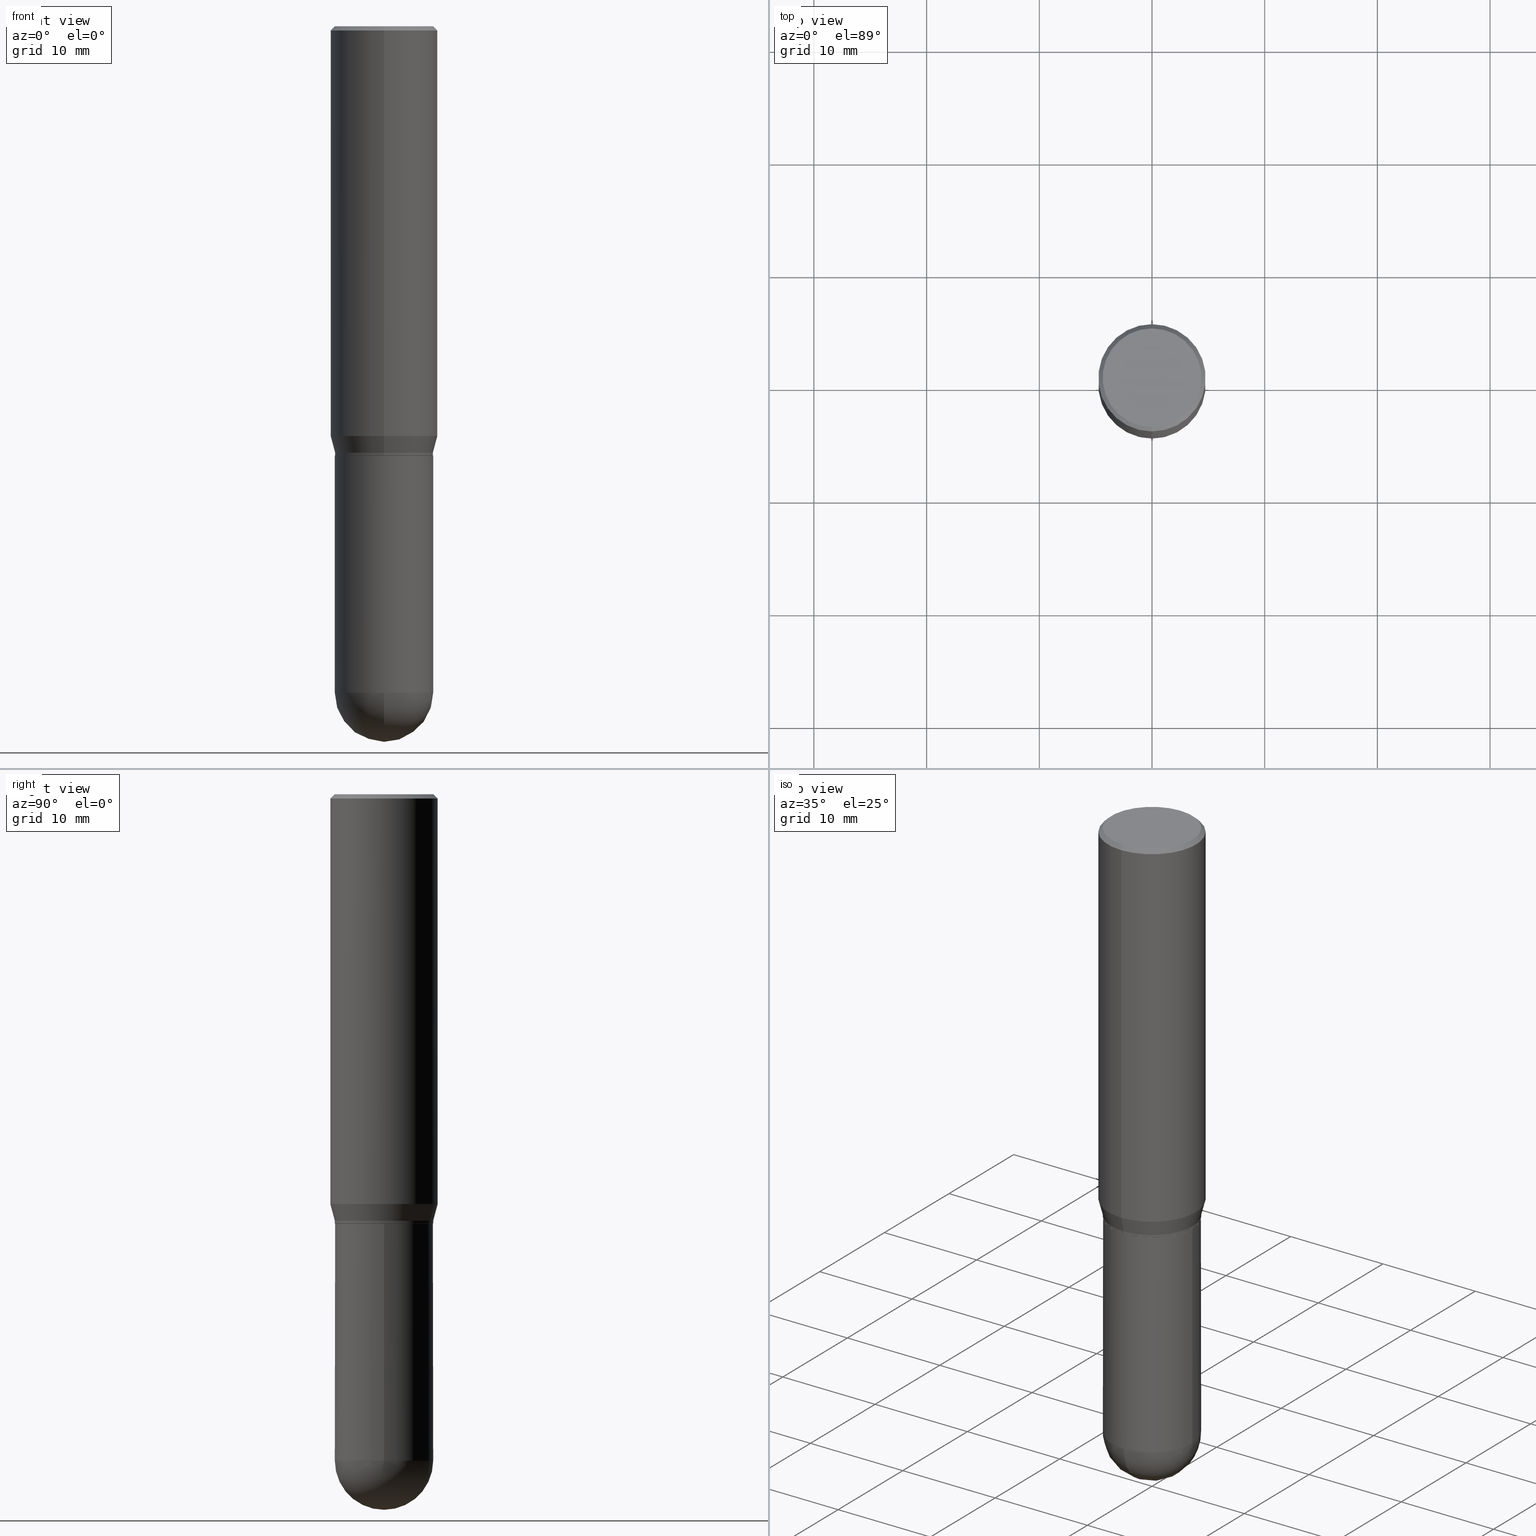
[diagram: canonical four-view strip — front | top / right | iso, engineering-drawing reading convention]
A machine part, canonical four-view strip (front | top / right | iso — engineering-drawing reading convention). The complete STEP part file that produces these views, byte-faithful:
ISO-10303-21;
HEADER;
FILE_DESCRIPTION (( 'STEP AP203' ),
    '1' );
FILE_NAME ('31151.STEP',
    '2024-03-08T15:56:43',
    ( '' ),
    ( '' ),
    'SwSTEP 2.0',
    'SolidWorks 2023',
    '' );
FILE_SCHEMA (( 'CONFIG_CONTROL_DESIGN' ));
ENDSEC;

DATA;
#1 = EDGE_LOOP ( 'NONE', ( #392, #140 ) ) ;
#2 = CARTESIAN_POINT ( 'NONE',  ( 3.667651660176797518E-31, -5.238011857969553431E-17, -0.01500000000000015730 ) ) ;
#3 = ORIENTED_EDGE ( 'NONE', *, *, #133, .T. ) ;
#4 = CARTESIAN_POINT ( 'NONE',  ( -1.200371284294232165E-15, -0.1719000000000051598, -1.499499999999999611 ) ) ;
#5 = CARTESIAN_POINT ( 'NONE',  ( 0.1719000000000000250, -1.200371284294269241E-15, 8.382147877593214480E-30 ) ) ;
#6 = PERSON_AND_ORGANIZATION ( #339, #63 ) ;
#7 = VECTOR ( 'NONE', #157, 39.37007874015748854 ) ;
#8 = AXIS2_PLACEMENT_3D ( 'NONE', #290, #251, #373 ) ;
#9 = DIRECTION ( 'NONE',  ( 4.937700262164548831E-15, 0.7071067811865452413, -0.7071067811865497932 ) ) ;
#10 = VERTEX_POINT ( 'NONE', #289 ) ;
#11 = CARTESIAN_POINT ( 'NONE',  ( 1.217870249092847983E-15, 0.1713999999999947510, -1.500000000000000666 ) ) ;
#12 = CARTESIAN_POINT ( 'NONE',  ( 1.276845296160934931E-15, 0.1718999999999946959, -1.490000000000000879 ) ) ;
#13 = EDGE_LOOP ( 'NONE', ( #98, #278, #461, #259 ) ) ;
#14 = CARTESIAN_POINT ( 'NONE',  ( 1.221422962771647501E-15, 0.1718999999999946959, -1.490000000000000879 ) ) ;
#15 = APPLICATION_PROTOCOL_DEFINITION ( 'international standard', 'config_control_design', 1994, #378 ) ;
#16 = EDGE_CURVE ( 'NONE', #10, #431, #366, .T. ) ;
#17 = AXIS2_PLACEMENT_3D ( 'NONE', #402, #308, #47 ) ;
#18 = CIRCLE ( 'NONE', #371, 0.1718999999999999140 ) ;
#19 = CARTESIAN_POINT ( 'NONE',  ( 1.332267629550222953E-15, 0.1874999999999999445, -0.01500000000000081303 ) ) ;
#20 = SPHERICAL_SURFACE ( 'NONE', #143, 0.1718999999999999417 ) ;
#21 = CARTESIAN_POINT ( 'NONE',  ( 3.847335093553996176E-45, -5.494629454708573138E-31, -1.573487117926806075E-16 ) ) ;
#22 = CYLINDRICAL_SURFACE ( 'NONE', #420, 0.1718999999999998862 ) ;
#23 = ADVANCED_FACE ( 'NONE', ( #131 ), #128, .T. ) ;
#24 = CARTESIAN_POINT ( 'NONE',  ( 0.000000000000000000, 0.000000000000000000, 0.000000000000000000 ) ) ;
#25 = VERTEX_POINT ( 'NONE', #124 ) ;
#26 = AXIS2_PLACEMENT_3D ( 'NONE', #58, #213, #56 ) ;
#27 = DIRECTION ( 'NONE',  ( -2.445468806185136597E-29, 3.491481338843145583E-15, 1.000000000000000000 ) ) ;
#28 = LOCAL_TIME ( 10, 56, 43.00000000000000000, #186 ) ;
#29 = ORIENTED_EDGE ( 'NONE', *, *, #216, .T. ) ;
#30 = DIRECTION ( 'NONE',  ( -2.445101106784506129E-29, 3.492007905312998807E-15, 1.000000000000000000 ) ) ;
#31 = AXIS2_PLACEMENT_3D ( 'NONE', #428, #305, #110 ) ;
#32 = DATE_AND_TIME ( #331, #454 ) ;
#33 = COORDINATED_UNIVERSAL_TIME_OFFSET ( 5, 0, .BEHIND. ) ;
#34 = ADVANCED_FACE ( 'NONE', ( #323 ), #20, .T. ) ;
#35 = EDGE_LOOP ( 'NONE', ( #114, #144, #363, #340 ) ) ;
#36 = ORIENTED_EDGE ( 'NONE', *, *, #404, .F. ) ;
#37 = FACE_OUTER_BOUND ( 'NONE', #387, .T. ) ;
#38 = PERSON_AND_ORGANIZATION_ROLE ( 'classification_officer' ) ;
#39 = CC_DESIGN_DATE_AND_TIME_ASSIGNMENT ( #425, #64, ( #386 ) ) ;
#40 = CIRCLE ( 'NONE', #31, 0.1875000000000000278 ) ;
#41 = LOCAL_TIME ( 10, 56, 43.00000000000000000, #214 ) ;
#42 = ORIENTED_EDGE ( 'NONE', *, *, #43, .F. ) ;
#43 = EDGE_CURVE ( 'NONE', #106, #119, #422, .T. ) ;
#44 = CARTESIAN_POINT ( 'NONE',  ( 0.000000000000000000, 0.000000000000000000, 0.000000000000000000 ) ) ;
#45 = ORIENTED_EDGE ( 'NONE', *, *, #188, .T. ) ;
#46 = ORIENTED_EDGE ( 'NONE', *, *, #446, .F. ) ;
#47 = DIRECTION ( 'NONE',  ( 6.982962677686265922E-15, 1.000000000000000000, -3.494488891895536035E-15 ) ) ;
#48 = CARTESIAN_POINT ( 'NONE',  ( 0.000000000000000000, 0.000000000000000000, 0.000000000000000000 ) ) ;
#49 = CARTESIAN_POINT ( 'NONE',  ( 3.500846880770375597E-29, -4.999787104516626728E-15, -1.431780007401925348 ) ) ;
#50 = AXIS2_PLACEMENT_3D ( 'NONE', #2, #439, #116 ) ;
#51 = VECTOR ( 'NONE', #96, 39.37007874015748143 ) ;
#52 = CARTESIAN_POINT ( 'NONE',  ( 3.666429109623367702E-29, -5.236265854016842005E-15, -1.499500000000000277 ) ) ;
#53 = ORIENTED_EDGE ( 'NONE', *, *, #43, .T. ) ;
#54 = DIRECTION ( 'NONE',  ( -6.982962677686265922E-15, -1.000000000000000000, 3.178415350394723252E-15 ) ) ;
#55 = CARTESIAN_POINT ( 'NONE',  ( 3.667651660176758913E-29, -5.238011857969497816E-15, -1.500000000000000222 ) ) ;
#56 = DIRECTION ( 'NONE',  ( -6.982962677686265922E-15, -1.000000000000000000, 3.178415350394723646E-15 ) ) ;
#57 = DIRECTION ( 'NONE',  ( -2.445468806185136597E-29, 3.491481338843145583E-15, 1.000000000000000000 ) ) ;
#58 = CARTESIAN_POINT ( 'NONE',  ( 3.643200649108914518E-29, -5.203091778916368972E-15, -1.490000000000000213 ) ) ;
#59 = AXIS2_PLACEMENT_3D ( 'NONE', #171, #502, #132 ) ;
#60 = CC_DESIGN_PERSON_AND_ORGANIZATION_ASSIGNMENT ( #390, #38, ( #386 ) ) ;
#61 = ORIENTED_EDGE ( 'NONE', *, *, #311, .F. ) ;
#62 = CIRCLE ( 'NONE', #336, 0.1718999999999999417 ) ;
#63 = ORGANIZATION ( 'UNSPECIFIED', 'UNSPECIFIED', '' ) ;
#64 = DATE_TIME_ROLE ( 'classification_date' ) ;
#65 = CALENDAR_DATE ( 2024, 8, 3 ) ;
#66 = DATE_AND_TIME ( #65, #149 ) ;
#67 = CARTESIAN_POINT ( 'NONE',  ( -1.200371284294268255E-15, -0.1718999999999998862, 6.002761589233040291E-16 ) ) ;
#68 = VERTEX_POINT ( 'NONE', #490 ) ;
#69 = EDGE_CURVE ( 'NONE', #106, #25, #62, .T. ) ;
#70 = AXIS2_PLACEMENT_3D ( 'NONE', #123, #30, #418 ) ;
#71 = CIRCLE ( 'NONE', #395, 0.1719000000000000250 ) ;
#72 = ORIENTED_EDGE ( 'NONE', *, *, #455, .T. ) ;
#73 = DIRECTION ( 'NONE',  ( 0.000000000000000000, 0.000000000000000000, 1.000000000000000000 ) ) ;
#74 = CARTESIAN_POINT ( 'NONE',  ( 0.000000000000000000, 0.000000000000000000, 0.000000000000000000 ) ) ;
#75 = SPHERICAL_SURFACE ( 'NONE', #190, 0.1718999999999999417 ) ;
#76 = DIRECTION ( 'NONE',  ( 1.000000000000000000, -6.982962677686265922E-15, 4.876176775795935793E-29 ) ) ;
#77 = CIRCLE ( 'NONE', #8, 0.1718999999999998862 ) ;
#78 = AXIS2_PLACEMENT_3D ( 'NONE', #74, #73, #229 ) ;
#79 = VERTEX_POINT ( 'NONE', #280 ) ;
#80 = DIRECTION ( 'NONE',  ( -2.445101106784506129E-29, 3.492007905312998807E-15, 1.000000000000000000 ) ) ;
#81 = DIRECTION ( 'NONE',  ( -2.445468806185136877E-29, 3.491481338843145188E-15, 1.000000000000000000 ) ) ;
#82 = ORIENTED_EDGE ( 'NONE', *, *, #409, .T. ) ;
#83 = CARTESIAN_POINT ( 'NONE',  ( 5.678595619168622984E-29, -8.149569383438070914E-15, -2.328100000000000058 ) ) ;
#84 = EDGE_LOOP ( 'NONE', ( #181, #383, #438, #199 ) ) ;
#85 = FACE_OUTER_BOUND ( 'NONE', #335, .T. ) ;
#86 = CONICAL_SURFACE ( 'NONE', #17, 0.1875000000000000278, 0.7853981633974485010 ) ;
#87 = CARTESIAN_POINT ( 'NONE',  ( 0.1719000000000000250, -7.883241140906993293E-15, -2.328100000000000058 ) ) ;
#88 = DIRECTION ( 'NONE',  ( -4.937700262164715281E-15, -0.7071067811865691111, 0.7071067811865257013 ) ) ;
#89 = DIRECTION ( 'NONE',  ( -6.982962677686265922E-15, -1.000000000000000000, 3.492007905312998413E-15 ) ) ;
#90 = LINE ( 'NONE', #324, #51 ) ;
#91 = CARTESIAN_POINT ( 'NONE',  ( -1.200371284294231968E-15, -0.1719000000000050765, -1.489999999999999769 ) ) ;
#92 = EDGE_CURVE ( 'NONE', #431, #105, #222, .T. ) ;
#93 = FACE_OUTER_BOUND ( 'NONE', #193, .T. ) ;
#94 = CIRCLE ( 'NONE', #136, 0.1713999999999999690 ) ;
#95 = EDGE_CURVE ( 'NONE', #119, #99, #117, .T. ) ;
#96 = DIRECTION ( 'NONE',  ( -2.445101106784506129E-29, 3.492007905312998807E-15, 1.000000000000000000 ) ) ;
#97 = AXIS2_PLACEMENT_3D ( 'NONE', #364, #326, #494 ) ;
#98 = ORIENTED_EDGE ( 'NONE', *, *, #122, .F. ) ;
#99 = VERTEX_POINT ( 'NONE', #87 ) ;
#100 = APPROVAL_ROLE ( '' ) ;
#101 = ADVANCED_FACE ( 'NONE', ( #416 ), #22, .T. ) ;
#102 = DATE_TIME_ROLE ( 'creation_date' ) ;
#103 = AXIS2_PLACEMENT_3D ( 'NONE', #155, #189, #276 ) ;
#104 = CC_DESIGN_SECURITY_CLASSIFICATION ( #386, ( #212 ) ) ;
#105 = VERTEX_POINT ( 'NONE', #246 ) ;
#106 = VERTEX_POINT ( 'NONE', #413 ) ;
#107 = DIRECTION ( 'NONE',  ( 1.000000000000000000, -6.982962677686268288E-15, 0.000000000000000000 ) ) ;
#108 = VECTOR ( 'NONE', #501, 39.37007874015748143 ) ;
#109 = AXIS2_PLACEMENT_3D ( 'NONE', #498, #244, #208 ) ;
#110 = DIRECTION ( 'NONE',  ( -6.982962677686265922E-15, -1.000000000000000000, 2.913971193241880372E-15 ) ) ;
#111 = VERTEX_POINT ( 'NONE', #211 ) ;
#112 = CARTESIAN_POINT ( 'NONE',  ( 3.667651660176797518E-31, -5.238011857969553431E-17, -0.01500000000000015730 ) ) ;
#113 = EDGE_CURVE ( 'NONE', #243, #68, #94, .T. ) ;
#114 = ORIENTED_EDGE ( 'NONE', *, *, #342, .T. ) ;
#115 = DIRECTION ( 'NONE',  ( -1.000000000000000000, 6.982962677686265922E-15, -4.883557194083112340E-29 ) ) ;
#116 = DIRECTION ( 'NONE',  ( -6.982962677686265922E-15, -1.000000000000000000, 3.494488891895536035E-15 ) ) ;
#117 = CIRCLE ( 'NONE', #313, 0.1719000000000000250 ) ;
#118 = VECTOR ( 'NONE', #88, 39.37007874015748854 ) ;
#119 = VERTEX_POINT ( 'NONE', #375 ) ;
#120 = DIRECTION ( 'NONE',  ( -6.982962677686266711E-15, -1.000000000000000000, 3.187687273820611169E-15 ) ) ;
#121 = DIRECTION ( 'NONE',  ( 6.982962677686266711E-15, 1.000000000000000000, 0.000000000000000000 ) ) ;
#122 = EDGE_CURVE ( 'NONE', #442, #79, #153, .T. ) ;
#123 = CARTESIAN_POINT ( 'NONE',  ( 3.667651660176758913E-29, -5.238011857969497816E-15, -1.500000000000000222 ) ) ;
#124 = CARTESIAN_POINT ( 'NONE',  ( 1.200371284294326039E-15, 0.1718999999999918094, -2.328100000000000946 ) ) ;
#125 = DIRECTION ( 'NONE',  ( -6.982962677686266711E-15, -1.000000000000000000, 3.492007905312998413E-15 ) ) ;
#126 = EDGE_CURVE ( 'NONE', #111, #182, #435, .T. ) ;
#127 = MANIFOLD_SOLID_BREP ( 'Body-Move/Copy2[1]', #370 ) ;
#128 = CYLINDRICAL_SURFACE ( 'NONE', #360, 0.1719000000000000250 ) ;
#129 = CC_DESIGN_APPROVAL ( #394, ( #437 ) ) ;
#130 = CARTESIAN_POINT ( 'NONE',  ( 3.667651660176758913E-29, -5.238011857969497816E-15, -1.500000000000000222 ) ) ;
#131 = FACE_OUTER_BOUND ( 'NONE', #306, .T. ) ;
#132 = DIRECTION ( 'NONE',  ( 1.000000000000000000, -6.982962677686268288E-15, 0.000000000000000000 ) ) ;
#133 = EDGE_CURVE ( 'NONE', #105, #431, #40, .T. ) ;
#134 = CARTESIAN_POINT ( 'NONE',  ( 0.000000000000000000, 0.000000000000000000, 0.000000000000000000 ) ) ;
#135 = PLANE ( 'NONE',  #298 ) ;
#136 = AXIS2_PLACEMENT_3D ( 'NONE', #55, #372, #209 ) ;
#137 = LINE ( 'NONE', #217, #322 ) ;
#138 = DESIGN_CONTEXT ( 'detailed design', #485, 'design' ) ;
#139 = ADVANCED_FACE ( 'NONE', ( #228 ), #264, .T. ) ;
#140 = ORIENTED_EDGE ( 'NONE', *, *, #113, .F. ) ;
#141 = PERSON_AND_ORGANIZATION ( #339, #63 ) ;
#142 = ORIENTED_EDGE ( 'NONE', *, *, #449, .F. ) ;
#143 = AXIS2_PLACEMENT_3D ( 'NONE', #314, #316, #207 ) ;
#144 = ORIENTED_EDGE ( 'NONE', *, *, #253, .T. ) ;
#145 = PERSON_AND_ORGANIZATION ( #339, #63 ) ;
#146 = ORIENTED_EDGE ( 'NONE', *, *, #126, .F. ) ;
#147 = EDGE_CURVE ( 'NONE', #350, #325, #389, .T. ) ;
#148 = DIRECTION ( 'NONE',  ( -2.445468806185136597E-29, 3.491481338843145583E-15, 1.000000000000000000 ) ) ;
#149 = LOCAL_TIME ( 10, 56, 43.00000000000000000, #33 ) ;
#150 = FACE_OUTER_BOUND ( 'NONE', #13, .T. ) ;
#151 = ORIENTED_EDGE ( 'NONE', *, *, #95, .F. ) ;
#152 = DIRECTION ( 'NONE',  ( -2.445468806185136597E-29, 3.491481338843145583E-15, 1.000000000000000000 ) ) ;
#153 = LINE ( 'NONE', #441, #385 ) ;
#154 = EDGE_LOOP ( 'NONE', ( #179, #474, #169, #445, #338 ) ) ;
#155 = CARTESIAN_POINT ( 'NONE',  ( 3.643200649108914518E-29, -5.203091778916368972E-15, -1.490000000000000213 ) ) ;
#156 = ADVANCED_BREP_SHAPE_REPRESENTATION ( '31151', ( #127, #468, #78 ), #204 ) ;
#157 = DIRECTION ( 'NONE',  ( 1.839019923739597949E-15, 0.2588190451025246253, 0.9659258262890670910 ) ) ;
#158 = MECHANICAL_CONTEXT ( 'NONE', #378, 'mechanical' ) ;
#159 = ADVANCED_FACE ( 'NONE', ( #344 ), #75, .T. ) ;
#160 = ORIENTED_EDGE ( 'NONE', *, *, #216, .F. ) ;
#161 = CARTESIAN_POINT ( 'NONE',  ( 3.667651660176758913E-29, -5.238011857969497816E-15, -1.500000000000000222 ) ) ;
#162 = ORIENTED_EDGE ( 'NONE', *, *, #95, .T. ) ;
#163 = EDGE_CURVE ( 'NONE', #465, #182, #497, .T. ) ;
#164 = LINE ( 'NONE', #407, #504 ) ;
#165 = EDGE_LOOP ( 'NONE', ( #355, #82, #487, #172 ) ) ;
#166 = DIRECTION ( 'NONE',  ( -2.445101106784506129E-29, 3.492007905312998807E-15, 1.000000000000000000 ) ) ;
#167 = ADVANCED_FACE ( 'NONE', ( #480 ), #86, .T. ) ;
#168 = APPROVAL_DATE_TIME ( #495, #394 ) ;
#169 = ORIENTED_EDGE ( 'NONE', *, *, #163, .F. ) ;
#170 = AXIS2_PLACEMENT_3D ( 'NONE', #397, #433, #120 ) ;
#171 = CARTESIAN_POINT ( 'NONE',  ( 3.668203209277704895E-29, -5.237222008264718177E-15, -1.500000000000000222 ) ) ;
#172 = ORIENTED_EDGE ( 'NONE', *, *, #455, .F. ) ;
#173 = PLANE ( 'NONE',  #408 ) ;
#174 = APPROVAL_ROLE ( '' ) ;
#175 = SHAPE_DEFINITION_REPRESENTATION ( #436, #156 ) ;
#176 = AXIS2_PLACEMENT_3D ( 'NONE', #49, #496, #249 ) ;
#177 = VECTOR ( 'NONE', #384, 39.37007874015748143 ) ;
#178 = AXIS2_PLACEMENT_3D ( 'NONE', #24, #166, #319 ) ;
#179 = ORIENTED_EDGE ( 'NONE', *, *, #446, .T. ) ;
#180 = EDGE_CURVE ( 'NONE', #325, #79, #430, .T. ) ;
#181 = ORIENTED_EDGE ( 'NONE', *, *, #253, .F. ) ;
#182 = VERTEX_POINT ( 'NONE', #232 ) ;
#183 = CIRCLE ( 'NONE', #97, 0.1875000000000000278 ) ;
#184 = EDGE_LOOP ( 'NONE', ( #312, #238, #72, #61 ) ) ;
#185 = UNCERTAINTY_MEASURE_WITH_UNIT (LENGTH_MEASURE( 1.000000000000000082E-05 ), #239, 'distance_accuracy_value', 'NONE');
#186 = COORDINATED_UNIVERSAL_TIME_OFFSET ( 5, 0, .BEHIND. ) ;
#187 = ORIENTED_EDGE ( 'NONE', *, *, #379, .F. ) ;
#188 = EDGE_CURVE ( 'NONE', #442, #350, #218, .T. ) ;
#189 = DIRECTION ( 'NONE',  ( -2.445101106784506129E-29, 3.492007905312998807E-15, 1.000000000000000000 ) ) ;
#190 = AXIS2_PLACEMENT_3D ( 'NONE', #83, #115, #341 ) ;
#191 = CONICAL_SURFACE ( 'NONE', #170, 0.1713999999999999690, 0.7853981633974824739 ) ;
#192 = LENGTH_MEASURE_WITH_UNIT ( LENGTH_MEASURE( 0.02539999999999999897 ), #201 );
#193 = EDGE_LOOP ( 'NONE', ( #36, #3, #302, #426 ) ) ;
#194 = DIRECTION ( 'NONE',  ( 6.982962677686265922E-15, 1.000000000000000000, -3.492007905312998807E-15 ) ) ;
#195 = CYLINDRICAL_SURFACE ( 'NONE', #478, 0.1718999999999998862 ) ;
#196 = ORIENTED_EDGE ( 'NONE', *, *, #163, .T. ) ;
#197 = CARTESIAN_POINT ( 'NONE',  ( 1.309305502066175600E-15, 0.1874999999999999445, -0.01500000000000081303 ) ) ;
#198 = CARTESIAN_POINT ( 'NONE',  ( 3.666429109623367702E-29, -5.236265854016842005E-15, -1.499500000000000277 ) ) ;
#199 = ORIENTED_EDGE ( 'NONE', *, *, #133, .F. ) ;
#200 = FACE_OUTER_BOUND ( 'NONE', #300, .T. ) ;
#201 =( LENGTH_UNIT ( ) NAMED_UNIT ( * ) SI_UNIT ( $, .METRE. ) );
#202 = AXIS2_PLACEMENT_3D ( 'NONE', #358, #240, #410 ) ;
#203 = ADVANCED_FACE ( 'NONE', ( #37 ), #444, .F. ) ;
#204 =( GEOMETRIC_REPRESENTATION_CONTEXT ( 3 ) GLOBAL_UNCERTAINTY_ASSIGNED_CONTEXT ( ( #185 ) ) GLOBAL_UNIT_ASSIGNED_CONTEXT ( ( #239, #349, #226 ) ) REPRESENTATION_CONTEXT ( 'NONE', 'WORKASPACE' ) );
#205 = ORIENTED_EDGE ( 'NONE', *, *, #188, .F. ) ;
#206 = CARTESIAN_POINT ( 'NONE',  ( 1.221422962771647501E-15, 0.1718999999999946682, -1.499500000000000721 ) ) ;
#207 = DIRECTION ( 'NONE',  ( 6.982962677686265922E-15, 1.000000000000000000, -3.178415350394722463E-15 ) ) ;
#208 = DIRECTION ( 'NONE',  ( -6.982962677686265922E-15, -1.000000000000000000, 3.178415350394723646E-15 ) ) ;
#209 = DIRECTION ( 'NONE',  ( -6.982962677686266711E-15, -1.000000000000000000, 3.187687273820611169E-15 ) ) ;
#210 = CARTESIAN_POINT ( 'NONE',  ( -1.234889639598875176E-15, -0.1725000000000000144, 4.450226518738116769E-16 ) ) ;
#211 = CARTESIAN_POINT ( 'NONE',  ( -0.1719000000000000250, -5.461446893841112247E-15, -2.328100000000000058 ) ) ;
#212 = PRODUCT_DEFINITION_FORMATION_WITH_SPECIFIED_SOURCE ( 'ANY', '', #309, .NOT_KNOWN. ) ;
#213 = DIRECTION ( 'NONE',  ( -2.445101106784506129E-29, 3.492007905312998807E-15, 1.000000000000000000 ) ) ;
#214 = COORDINATED_UNIVERSAL_TIME_OFFSET ( 5, 0, .BEHIND. ) ;
#215 = PERSON_AND_ORGANIZATION ( #339, #63 ) ;
#216 = EDGE_CURVE ( 'NONE', #243, #263, #351, .T. ) ;
#217 = CARTESIAN_POINT ( 'NONE',  ( -1.309305502066175008E-15, -0.1875000000000000278, 6.547514822461873257E-16 ) ) ;
#218 = CIRCLE ( 'NONE', #256, 0.1725000000000000144 ) ;
#219 = LOCAL_TIME ( 10, 56, 43.00000000000000000, #427 ) ;
#220 = ORIENTED_EDGE ( 'NONE', *, *, #473, .F. ) ;
#221 = ADVANCED_FACE ( 'NONE', ( #303 ), #486, .T. ) ;
#222 = CIRCLE ( 'NONE', #176, 0.1875000000000000278 ) ;
#223 = CC_DESIGN_APPROVAL ( #245, ( #386 ) ) ;
#224 = ORIENTED_EDGE ( 'NONE', *, *, #414, .F. ) ;
#225 = DIRECTION ( 'NONE',  ( -6.982962677686265922E-15, -1.000000000000000000, 3.492007905312998413E-15 ) ) ;
#226 =( NAMED_UNIT ( * ) SI_UNIT ( $, .STERADIAN. ) SOLID_ANGLE_UNIT ( ) );
#227 = SECURITY_CLASSIFICATION_LEVEL ( 'unclassified' ) ;
#228 = FACE_OUTER_BOUND ( 'NONE', #84, .T. ) ;
#229 = DIRECTION ( 'NONE',  ( 1.000000000000000000, 0.000000000000000000, 0.000000000000000000 ) ) ;
#230 = APPROVAL ( #334, 'UNSPECIFIED' ) ;
#231 = VERTEX_POINT ( 'NONE', #4 ) ;
#232 = CARTESIAN_POINT ( 'NONE',  ( -0.1718999999999999695, -5.461446893841111458E-15, -1.500000000000000222 ) ) ;
#233 = CIRCLE ( 'NONE', #26, 0.1718999999999998862 ) ;
#234 = AXIS2_PLACEMENT_3D ( 'NONE', #112, #353, #277 ) ;
#235 = DIRECTION ( 'NONE',  ( -2.445101106784506129E-29, 3.492007905312998807E-15, 1.000000000000000000 ) ) ;
#236 = ORIENTED_EDGE ( 'NONE', *, *, #122, .T. ) ;
#237 = CARTESIAN_POINT ( 'NONE',  ( 5.693295927679617284E-29, -8.128517704960729139E-15, -2.328100000000000058 ) ) ;
#238 = ORIENTED_EDGE ( 'NONE', *, *, #374, .T. ) ;
#239 =( CONVERSION_BASED_UNIT ( 'INCH', #192 ) LENGTH_UNIT ( ) NAMED_UNIT ( #252 ) );
#240 = DIRECTION ( 'NONE',  ( -1.000000000000000000, 7.105427357601001070E-15, -4.926315508542082329E-29 ) ) ;
#241 = DIRECTION ( 'NONE',  ( -2.445101106784506129E-29, 3.492007905312998807E-15, 1.000000000000000000 ) ) ;
#242 = EDGE_CURVE ( 'NONE', #99, #25, #291, .T. ) ;
#243 = VERTEX_POINT ( 'NONE', #399 ) ;
#244 = DIRECTION ( 'NONE',  ( -2.445101106784506129E-29, 3.492007905312998807E-15, 1.000000000000000000 ) ) ;
#245 = APPROVAL ( #376, 'UNSPECIFIED' ) ;
#246 = CARTESIAN_POINT ( 'NONE',  ( 1.332267629550222558E-15, 0.1874999999999950318, -1.431780007401926014 ) ) ;
#247 = CARTESIAN_POINT ( 'NONE',  ( -1.309305502066140101E-15, -0.1875000000000049960, -1.431780007401924903 ) ) ;
#248 = PERSON_AND_ORGANIZATION ( #339, #63 ) ;
#249 = DIRECTION ( 'NONE',  ( -6.982962677686265922E-15, -1.000000000000000000, 2.913971193241880372E-15 ) ) ;
#250 = DIRECTION ( 'NONE',  ( 1.000000000000000000, -6.982962677686271444E-15, 0.000000000000000000 ) ) ;
#251 = DIRECTION ( 'NONE',  ( -2.445101106784506129E-29, 3.492007905312998807E-15, 1.000000000000000000 ) ) ;
#252 = DIMENSIONAL_EXPONENTS ( 1.000000000000000000, 0.000000000000000000, 0.000000000000000000, 0.000000000000000000, 0.000000000000000000, 0.000000000000000000, 0.000000000000000000 ) ;
#253 = EDGE_CURVE ( 'NONE', #512, #105, #356, .T. ) ;
#254 = ORIENTED_EDGE ( 'NONE', *, *, #296, .T. ) ;
#255 = APPROVAL_DATE_TIME ( #32, #230 ) ;
#256 = AXIS2_PLACEMENT_3D ( 'NONE', #483, #476, #269 ) ;
#257 = AXIS2_PLACEMENT_3D ( 'NONE', #130, #285, #457 ) ;
#258 = PRODUCT_RELATED_PRODUCT_CATEGORY ( 'detail', '', ( #309 ) ) ;
#259 = ORIENTED_EDGE ( 'NONE', *, *, #180, .T. ) ;
#260 = DIRECTION ( 'NONE',  ( -2.445468806185136877E-29, 3.491481338843145188E-15, 1.000000000000000000 ) ) ;
#261 = CALENDAR_DATE ( 2024, 8, 3 ) ;
#262 = CARTESIAN_POINT ( 'NONE',  ( -0.1719000000000000250, 1.221422962771612397E-15, -8.455649420148184581E-30 ) ) ;
#263 = VERTEX_POINT ( 'NONE', #206 ) ;
#264 = CONICAL_SURFACE ( 'NONE', #103, 0.1718999999999998862, 0.2617993877991499629 ) ;
#265 = CARTESIAN_POINT ( 'NONE',  ( 3.668203209277704895E-29, -5.237222008264718177E-15, -1.500000000000000222 ) ) ;
#266 = CIRCLE ( 'NONE', #59, 0.1718999999999999695 ) ;
#267 = ADVANCED_FACE ( 'NONE', ( #200 ), #393, .T. ) ;
#268 = ORIENTED_EDGE ( 'NONE', *, *, #69, .T. ) ;
#269 = DIRECTION ( 'NONE',  ( -6.982962677686266711E-15, -1.000000000000000000, 3.492007905312998413E-15 ) ) ;
#270 = LINE ( 'NONE', #5, #470 ) ;
#271 = ORIENTED_EDGE ( 'NONE', *, *, #471, .T. ) ;
#272 = CARTESIAN_POINT ( 'NONE',  ( 0.000000000000000000, 0.000000000000000000, 0.000000000000000000 ) ) ;
#273 = AXIS2_PLACEMENT_3D ( 'NONE', #265, #152, #107 ) ;
#274 = APPROVAL_PERSON_ORGANIZATION ( #215, #245, #100 ) ;
#275 = ORIENTED_EDGE ( 'NONE', *, *, #352, .T. ) ;
#276 = DIRECTION ( 'NONE',  ( -6.982962677686265922E-15, -1.000000000000000000, 3.178415350394723646E-15 ) ) ;
#277 = DIRECTION ( 'NONE',  ( 6.982962677686265922E-15, 1.000000000000000000, -3.494488891895536035E-15 ) ) ;
#278 = ORIENTED_EDGE ( 'NONE', *, *, #391, .F. ) ;
#279 = DIRECTION ( 'NONE',  ( 1.000000000000000000, -6.982962677686271444E-15, 0.000000000000000000 ) ) ;
#280 = CARTESIAN_POINT ( 'NONE',  ( -1.309305502066174614E-15, -0.1875000000000000833, -0.01499999999999950331 ) ) ;
#281 = CARTESIAN_POINT ( 'NONE',  ( -1.196879802955389158E-15, -0.1714000000000052149, -1.499999999999999556 ) ) ;
#282 = PERSON_AND_ORGANIZATION_ROLE ( 'design_owner' ) ;
#283 = CIRCLE ( 'NONE', #361, 0.1718999999999999140 ) ;
#284 = CARTESIAN_POINT ( 'NONE',  ( 5.693295927679617284E-29, -8.128517704960729139E-15, -2.328100000000000058 ) ) ;
#285 = DIRECTION ( 'NONE',  ( -2.445101106784506129E-29, 3.492007905312998807E-15, 1.000000000000000000 ) ) ;
#286 = CARTESIAN_POINT ( 'NONE',  ( 5.678595619168622984E-29, -8.149569383438070914E-15, -2.328100000000000058 ) ) ;
#287 = DIRECTION ( 'NONE',  ( -2.445468806185136597E-29, 3.491481338843145583E-15, 1.000000000000000000 ) ) ;
#288 = PERSON_AND_ORGANIZATION ( #339, #63 ) ;
#289 = CARTESIAN_POINT ( 'NONE',  ( -1.200371284294231968E-15, -0.1719000000000050765, -1.489999999999999769 ) ) ;
#290 = CARTESIAN_POINT ( 'NONE',  ( 3.643200649108914518E-29, -5.203091778916368972E-15, -1.490000000000000213 ) ) ;
#291 = CIRCLE ( 'NONE', #328, 0.1719000000000000250 ) ;
#292 = CIRCLE ( 'NONE', #257, 0.1713999999999999690 ) ;
#293 = CC_DESIGN_DATE_AND_TIME_ASSIGNMENT ( #66, #102, ( #437 ) ) ;
#294 = CALENDAR_DATE ( 2024, 8, 3 ) ;
#295 = APPROVAL_DATE_TIME ( #301, #245 ) ;
#296 = EDGE_CURVE ( 'NONE', #111, #119, #377, .T. ) ;
#297 = PERSON_AND_ORGANIZATION_ROLE ( 'creator' ) ;
#298 = AXIS2_PLACEMENT_3D ( 'NONE', #161, #315, #317 ) ;
#299 = ORIENTED_EDGE ( 'NONE', *, *, #352, .F. ) ;
#300 = EDGE_LOOP ( 'NONE', ( #382, #29, #220, #224 ) ) ;
#301 = DATE_AND_TIME ( #261, #219 ) ;
#302 = ORIENTED_EDGE ( 'NONE', *, *, #449, .T. ) ;
#303 = FACE_OUTER_BOUND ( 'NONE', #327, .T. ) ;
#304 = APPROVAL_ROLE ( '' ) ;
#305 = DIRECTION ( 'NONE',  ( -2.445101106784506129E-29, 3.492007905312998807E-15, 1.000000000000000000 ) ) ;
#306 = EDGE_LOOP ( 'NONE', ( #146, #254, #162, #271, #299 ) ) ;
#307 = DIRECTION ( 'NONE',  ( 1.000000000000000000, -6.982962677686271444E-15, 0.000000000000000000 ) ) ;
#308 = DIRECTION ( 'NONE',  ( 2.445101106784506129E-29, -3.492007905312998807E-15, -1.000000000000000000 ) ) ;
#309 = PRODUCT ( '31151', '31151', '', ( #158 ) ) ;
#310 = DIRECTION ( 'NONE',  ( 5.024295867788231995E-15, 0.7071067811865739960, 0.7071067811865208164 ) ) ;
#311 = EDGE_CURVE ( 'NONE', #512, #10, #233, .T. ) ;
#312 = ORIENTED_EDGE ( 'NONE', *, *, #409, .F. ) ;
#313 = AXIS2_PLACEMENT_3D ( 'NONE', #284, #57, #451 ) ;
#314 = CARTESIAN_POINT ( 'NONE',  ( 5.678595619168622984E-29, -8.149569383438070914E-15, -2.328100000000000058 ) ) ;
#315 = DIRECTION ( 'NONE',  ( -2.445101106784505568E-29, 3.492007905312998807E-15, 1.000000000000000000 ) ) ;
#316 = DIRECTION ( 'NONE',  ( -1.000000000000000000, 6.982962677686265922E-15, -4.883557194083112340E-29 ) ) ;
#317 = DIRECTION ( 'NONE',  ( -6.982962677686265922E-15, -1.000000000000000000, 3.492007905312998807E-15 ) ) ;
#318 = CARTESIAN_POINT ( 'NONE',  ( 0.000000000000000000, 0.000000000000000000, 0.000000000000000000 ) ) ;
#319 = DIRECTION ( 'NONE',  ( -6.982962677686265922E-15, -1.000000000000000000, 3.492007905312998413E-15 ) ) ;
#320 = CC_DESIGN_PERSON_AND_ORGANIZATION_ASSIGNMENT ( #288, #282, ( #309 ) ) ;
#321 = VECTOR ( 'NONE', #310, 39.37007874015748854 ) ;
#322 = VECTOR ( 'NONE', #506, 39.37007874015748143 ) ;
#323 = FACE_OUTER_BOUND ( 'NONE', #508, .T. ) ;
#324 = CARTESIAN_POINT ( 'NONE',  ( 1.221422962771611214E-15, 0.1718999999999998862, -6.002761589233040291E-16 ) ) ;
#325 = VERTEX_POINT ( 'NONE', #19 ) ;
#326 = DIRECTION ( 'NONE',  ( -2.445101106784506129E-29, 3.492007905312998807E-15, 1.000000000000000000 ) ) ;
#327 = EDGE_LOOP ( 'NONE', ( #346, #343, #187, #142 ) ) ;
#328 = AXIS2_PLACEMENT_3D ( 'NONE', #237, #148, #307 ) ;
#329 = CIRCLE ( 'NONE', #479, 0.1725000000000000144 ) ;
#330 = ADVANCED_FACE ( 'NONE', ( #500 ), #135, .F. ) ;
#331 = CALENDAR_DATE ( 2024, 8, 3 ) ;
#332 = ORIENTED_EDGE ( 'NONE', *, *, #379, .T. ) ;
#333 = CC_DESIGN_PERSON_AND_ORGANIZATION_ASSIGNMENT ( #248, #466, ( #437 ) ) ;
#334 = APPROVAL_STATUS ( 'not_yet_approved' ) ;
#335 = EDGE_LOOP ( 'NONE', ( #196, #275 ) ) ;
#336 = AXIS2_PLACEMENT_3D ( 'NONE', #286, #459, #121 ) ;
#337 = APPROVAL_PERSON_ORGANIZATION ( #419, #394, #174 ) ;
#338 = ORIENTED_EDGE ( 'NONE', *, *, #242, .T. ) ;
#339 = PERSON ( 'UNSPECIFIED', 'UNSPECIFIED', 'UNSPECIFIED', ('UNSPECIFIED'), ('UNSPECIFIED'), ('UNSPECIFIED') ) ;
#340 = ORIENTED_EDGE ( 'NONE', *, *, #16, .F. ) ;
#341 = DIRECTION ( 'NONE',  ( 6.982962677686265922E-15, 1.000000000000000000, -3.178415350394722463E-15 ) ) ;
#342 = EDGE_CURVE ( 'NONE', #10, #512, #77, .T. ) ;
#343 = ORIENTED_EDGE ( 'NONE', *, *, #404, .T. ) ;
#344 = FACE_OUTER_BOUND ( 'NONE', #447, .T. ) ;
#345 = PERSON_AND_ORGANIZATION_ROLE ( 'design_supplier' ) ;
#346 = ORIENTED_EDGE ( 'NONE', *, *, #92, .T. ) ;
#347 = CONICAL_SURFACE ( 'NONE', #109, 0.1718999999999998862, 0.2617993877991499629 ) ;
#348 = ADVANCED_FACE ( 'NONE', ( #85 ), #173, .F. ) ;
#349 =( NAMED_UNIT ( * ) PLANE_ANGLE_UNIT ( ) SI_UNIT ( $, .RADIAN. ) );
#350 = VERTEX_POINT ( 'NONE', #448 ) ;
#351 = LINE ( 'NONE', #11, #321 ) ;
#352 = EDGE_CURVE ( 'NONE', #182, #465, #266, .T. ) ;
#353 = DIRECTION ( 'NONE',  ( 2.445101106784506129E-29, -3.492007905312998807E-15, -1.000000000000000000 ) ) ;
#354 = CARTESIAN_POINT ( 'NONE',  ( 0.1718999999999999695, -6.437593292558987418E-15, -1.500000000000000222 ) ) ;
#355 = ORIENTED_EDGE ( 'NONE', *, *, #473, .T. ) ;
#356 = LINE ( 'NONE', #14, #7 ) ;
#357 = FACE_OUTER_BOUND ( 'NONE', #165, .T. ) ;
#358 = CARTESIAN_POINT ( 'NONE',  ( 5.678595619168622984E-29, -8.149569383438070914E-15, -2.328100000000000058 ) ) ;
#359 = CARTESIAN_POINT ( 'NONE',  ( 5.693295927679617284E-29, -8.128517704960729139E-15, -2.328100000000000058 ) ) ;
#360 = AXIS2_PLACEMENT_3D ( 'NONE', #134, #405, #401 ) ;
#361 = AXIS2_PLACEMENT_3D ( 'NONE', #198, #440, #489 ) ;
#362 = CYLINDRICAL_SURFACE ( 'NONE', #443, 0.1719000000000000250 ) ;
#363 = ORIENTED_EDGE ( 'NONE', *, *, #92, .F. ) ;
#364 = CARTESIAN_POINT ( 'NONE',  ( 3.667651660176797518E-31, -5.238011857969553431E-17, -0.01500000000000015730 ) ) ;
#365 = APPLICATION_PROTOCOL_DEFINITION ( 'international standard', 'config_control_design', 1994, #485 ) ;
#366 = LINE ( 'NONE', #91, #108 ) ;
#367 = CYLINDRICAL_SURFACE ( 'NONE', #178, 0.1875000000000000278 ) ;
#368 = ORIENTED_EDGE ( 'NONE', *, *, #391, .T. ) ;
#369 = CARTESIAN_POINT ( 'NONE',  ( 5.693295927679617284E-29, -8.128517704960729139E-15, -2.328100000000000058 ) ) ;
#370 = CLOSED_SHELL ( 'NONE', ( #481, #34, #348, #159, #23 ) ) ;
#371 = AXIS2_PLACEMENT_3D ( 'NONE', #52, #415, #54 ) ;
#372 = DIRECTION ( 'NONE',  ( -2.445101106784506129E-29, 3.492007905312998807E-15, 1.000000000000000000 ) ) ;
#373 = DIRECTION ( 'NONE',  ( -6.982962677686265922E-15, -1.000000000000000000, 3.178415350394723646E-15 ) ) ;
#374 = EDGE_CURVE ( 'NONE', #263, #231, #18, .T. ) ;
#375 = CARTESIAN_POINT ( 'NONE',  ( -1.221422962771555008E-15, -0.1719000000000081296, -2.328099999999999614 ) ) ;
#376 = APPROVAL_STATUS ( 'not_yet_approved' ) ;
#377 = CIRCLE ( 'NONE', #469, 0.1719000000000000250 ) ;
#378 = APPLICATION_CONTEXT ( 'configuration controlled 3d designs of mechanical parts and assemblies' ) ;
#379 = EDGE_CURVE ( 'NONE', #79, #325, #183, .T. ) ;
#380 = ORIENTED_EDGE ( 'NONE', *, *, #113, .T. ) ;
#381 = FACE_OUTER_BOUND ( 'NONE', #475, .T. ) ;
#382 = ORIENTED_EDGE ( 'NONE', *, *, #429, .T. ) ;
#383 = ORIENTED_EDGE ( 'NONE', *, *, #311, .T. ) ;
#384 = DIRECTION ( 'NONE',  ( -2.445101106784506129E-29, 3.492007905312998807E-15, 1.000000000000000000 ) ) ;
#385 = VECTOR ( 'NONE', #477, 39.37007874015748143 ) ;
#386 = SECURITY_CLASSIFICATION ( '', '', #227 ) ;
#387 = EDGE_LOOP ( 'NONE', ( #368, #45 ) ) ;
#388 = ORIENTED_EDGE ( 'NONE', *, *, #69, .F. ) ;
#389 = LINE ( 'NONE', #197, #510 ) ;
#390 = PERSON_AND_ORGANIZATION ( #339, #63 ) ;
#391 = EDGE_CURVE ( 'NONE', #350, #442, #329, .T. ) ;
#392 = ORIENTED_EDGE ( 'NONE', *, *, #429, .F. ) ;
#393 = CONICAL_SURFACE ( 'NONE', #70, 0.1713999999999999690, 0.7853981633974824739 ) ;
#394 = APPROVAL ( #412, 'UNSPECIFIED' ) ;
#395 = AXIS2_PLACEMENT_3D ( 'NONE', #369, #27, #250 ) ;
#396 = DIRECTION ( 'NONE',  ( 2.445101106784505568E-29, -3.492007905312998807E-15, -1.000000000000000000 ) ) ;
#397 = CARTESIAN_POINT ( 'NONE',  ( 3.667651660176758913E-29, -5.238011857969497816E-15, -1.500000000000000222 ) ) ;
#398 = ORIENTED_EDGE ( 'NONE', *, *, #147, .F. ) ;
#399 = CARTESIAN_POINT ( 'NONE',  ( 1.219646605932247841E-15, 0.1713999999999947510, -1.500000000000000666 ) ) ;
#400 = FACE_OUTER_BOUND ( 'NONE', #154, .T. ) ;
#401 = DIRECTION ( 'NONE',  ( 1.000000000000000000, -6.982962677686265922E-15, 4.876176775795935793E-29 ) ) ;
#402 = CARTESIAN_POINT ( 'NONE',  ( 3.667651660176797518E-31, -5.238011857969553431E-17, -0.01500000000000015730 ) ) ;
#403 = DIRECTION ( 'NONE',  ( -2.445468806185136597E-29, 3.491481338843145583E-15, 1.000000000000000000 ) ) ;
#404 = EDGE_CURVE ( 'NONE', #105, #325, #164, .T. ) ;
#405 = DIRECTION ( 'NONE',  ( -2.445468806185136597E-29, 3.491481338843145583E-15, 1.000000000000000000 ) ) ;
#406 = VECTOR ( 'NONE', #260, 39.37007874015748143 ) ;
#407 = CARTESIAN_POINT ( 'NONE',  ( 1.332267629550187651E-15, 0.1875000000000000278, -6.547514822461873257E-16 ) ) ;
#408 = AXIS2_PLACEMENT_3D ( 'NONE', #453, #492, #411 ) ;
#409 = EDGE_CURVE ( 'NONE', #263, #512, #90, .T. ) ;
#410 = DIRECTION ( 'NONE',  ( -7.105427357601001070E-15, -1.000000000000000000, 0.000000000000000000 ) ) ;
#411 = DIRECTION ( 'NONE',  ( -1.000000000000000000, 6.982962677686265922E-15, -4.876176775795935793E-29 ) ) ;
#412 = APPROVAL_STATUS ( 'not_yet_approved' ) ;
#413 = CARTESIAN_POINT ( 'NONE',  ( 6.106321861207344902E-29, -8.739229186346536619E-15, -2.500000000000000000 ) ) ;
#414 = EDGE_CURVE ( 'NONE', #68, #231, #421, .T. ) ;
#415 = DIRECTION ( 'NONE',  ( -2.445101106784506129E-29, 3.492007905312998807E-15, 1.000000000000000000 ) ) ;
#416 = FACE_OUTER_BOUND ( 'NONE', #184, .T. ) ;
#417 = ADVANCED_FACE ( 'NONE', ( #460 ), #347, .T. ) ;
#418 = DIRECTION ( 'NONE',  ( -6.982962677686266711E-15, -1.000000000000000000, 3.187687273820611169E-15 ) ) ;
#419 = PERSON_AND_ORGANIZATION ( #339, #63 ) ;
#420 = AXIS2_PLACEMENT_3D ( 'NONE', #318, #456, #89 ) ;
#421 = LINE ( 'NONE', #281, #118 ) ;
#422 = CIRCLE ( 'NONE', #202, 0.1718999999999999417 ) ;
#423 = CC_DESIGN_APPROVAL ( #230, ( #212 ) ) ;
#424 = ADVANCED_FACE ( 'NONE', ( #93 ), #367, .T. ) ;
#425 = DATE_AND_TIME ( #294, #28 ) ;
#426 = ORIENTED_EDGE ( 'NONE', *, *, #180, .F. ) ;
#427 = COORDINATED_UNIVERSAL_TIME_OFFSET ( 5, 0, .BEHIND. ) ;
#428 = CARTESIAN_POINT ( 'NONE',  ( 3.500846880770375597E-29, -4.999787104516626728E-15, -1.431780007401925348 ) ) ;
#429 = EDGE_CURVE ( 'NONE', #68, #243, #292, .T. ) ;
#430 = CIRCLE ( 'NONE', #50, 0.1875000000000000278 ) ;
#431 = VERTEX_POINT ( 'NONE', #247 ) ;
#432 = CARTESIAN_POINT ( 'NONE',  ( 1.204561061900881047E-15, 0.1725000000000000144, -6.810457195628326867E-16 ) ) ;
#433 = DIRECTION ( 'NONE',  ( -2.445101106784506129E-29, 3.492007905312998807E-15, 1.000000000000000000 ) ) ;
#434 = COORDINATED_UNIVERSAL_TIME_OFFSET ( 5, 0, .BEHIND. ) ;
#435 = LINE ( 'NONE', #262, #406 ) ;
#436 = PRODUCT_DEFINITION_SHAPE ( 'NONE', 'NONE',  #437 ) ;
#437 = PRODUCT_DEFINITION ( 'UNKNOWN', '', #212, #138 ) ;
#438 = ORIENTED_EDGE ( 'NONE', *, *, #16, .T. ) ;
#439 = DIRECTION ( 'NONE',  ( -2.445101106784506129E-29, 3.492007905312998807E-15, 1.000000000000000000 ) ) ;
#440 = DIRECTION ( 'NONE',  ( -2.445101106784506129E-29, 3.492007905312998807E-15, 1.000000000000000000 ) ) ;
#441 = CARTESIAN_POINT ( 'NONE',  ( -1.286343374582161576E-15, -0.1875000000000000833, -0.01499999999999950331 ) ) ;
#442 = VERTEX_POINT ( 'NONE', #210 ) ;
#443 = AXIS2_PLACEMENT_3D ( 'NONE', #44, #403, #76 ) ;
#444 = PLANE ( 'NONE',  #452 ) ;
#445 = ORIENTED_EDGE ( 'NONE', *, *, #471, .F. ) ;
#446 = EDGE_CURVE ( 'NONE', #25, #111, #71, .T. ) ;
#447 = EDGE_LOOP ( 'NONE', ( #42, #268, #472, #151 ) ) ;
#448 = CARTESIAN_POINT ( 'NONE',  ( 1.256933281983528323E-15, 0.1725000000000000144, -7.597200754591727933E-16 ) ) ;
#449 = EDGE_CURVE ( 'NONE', #431, #79, #137, .T. ) ;
#450 = CALENDAR_DATE ( 2024, 8, 3 ) ;
#451 = DIRECTION ( 'NONE',  ( 1.000000000000000000, -6.982962677686271444E-15, 0.000000000000000000 ) ) ;
#452 = AXIS2_PLACEMENT_3D ( 'NONE', #432, #396, #194 ) ;
#453 = CARTESIAN_POINT ( 'NONE',  ( 1.200371284294305726E-15, 0.1718999999999947514, -1.500000000000000666 ) ) ;
#454 = LOCAL_TIME ( 10, 56, 43.00000000000000000, #434 ) ;
#455 = EDGE_CURVE ( 'NONE', #231, #10, #509, .T. ) ;
#456 = DIRECTION ( 'NONE',  ( -2.445101106784506129E-29, 3.492007905312998807E-15, 1.000000000000000000 ) ) ;
#457 = DIRECTION ( 'NONE',  ( -6.982962677686266711E-15, -1.000000000000000000, 3.187687273820611169E-15 ) ) ;
#458 = CC_DESIGN_PERSON_AND_ORGANIZATION_ASSIGNMENT ( #6, #345, ( #212 ) ) ;
#459 = DIRECTION ( 'NONE',  ( 1.000000000000000000, -6.982962677686265922E-15, 4.883557194083112340E-29 ) ) ;
#460 = FACE_OUTER_BOUND ( 'NONE', #35, .T. ) ;
#461 = ORIENTED_EDGE ( 'NONE', *, *, #147, .T. ) ;
#462 = DIRECTION ( 'NONE',  ( -2.445101106784506129E-29, 3.492007905312998807E-15, 1.000000000000000000 ) ) ;
#463 = AXIS2_PLACEMENT_3D ( 'NONE', #272, #80, #225 ) ;
#464 = CONICAL_SURFACE ( 'NONE', #234, 0.1875000000000000278, 0.7853981633974485010 ) ;
#465 = VERTEX_POINT ( 'NONE', #354 ) ;
#466 = PERSON_AND_ORGANIZATION_ROLE ( 'creator' ) ;
#467 = ADVANCED_FACE ( 'NONE', ( #381 ), #191, .T. ) ;
#468 = MANIFOLD_SOLID_BREP ( 'Body-Move/Copy2[2]', #488 ) ;
#469 = AXIS2_PLACEMENT_3D ( 'NONE', #359, #287, #279 ) ;
#470 = VECTOR ( 'NONE', #81, 39.37007874015748143 ) ;
#471 = EDGE_CURVE ( 'NONE', #99, #465, #270, .T. ) ;
#472 = ORIENTED_EDGE ( 'NONE', *, *, #242, .F. ) ;
#473 = EDGE_CURVE ( 'NONE', #231, #263, #283, .T. ) ;
#474 = ORIENTED_EDGE ( 'NONE', *, *, #126, .T. ) ;
#475 = EDGE_LOOP ( 'NONE', ( #160, #380, #493, #505 ) ) ;
#476 = DIRECTION ( 'NONE',  ( -2.445101106784506129E-29, 3.492007905312998807E-15, 1.000000000000000000 ) ) ;
#477 = DIRECTION ( 'NONE',  ( -4.851104656540965064E-15, -0.7071067811865501263, -0.7071067811865449082 ) ) ;
#478 = AXIS2_PLACEMENT_3D ( 'NONE', #48, #235, #482 ) ;
#479 = AXIS2_PLACEMENT_3D ( 'NONE', #21, #241, #125 ) ;
#480 = FACE_OUTER_BOUND ( 'NONE', #484, .T. ) ;
#481 = ADVANCED_FACE ( 'NONE', ( #400 ), #362, .T. ) ;
#482 = DIRECTION ( 'NONE',  ( -6.982962677686265922E-15, -1.000000000000000000, 3.492007905312998413E-15 ) ) ;
#483 = CARTESIAN_POINT ( 'NONE',  ( 3.847335093553996176E-45, -5.494629454708573138E-31, -1.573487117926806075E-16 ) ) ;
#484 = EDGE_LOOP ( 'NONE', ( #205, #236, #332, #398 ) ) ;
#485 = APPLICATION_CONTEXT ( 'configuration controlled 3d designs of mechanical parts and assemblies' ) ;
#486 = CYLINDRICAL_SURFACE ( 'NONE', #463, 0.1875000000000000278 ) ;
#487 = ORIENTED_EDGE ( 'NONE', *, *, #342, .F. ) ;
#488 = CLOSED_SHELL ( 'NONE', ( #503, #267, #167, #221, #417, #139, #424, #507, #203, #330, #467, #101 ) ) ;
#489 = DIRECTION ( 'NONE',  ( -6.982962677686265922E-15, -1.000000000000000000, 3.178415350394723252E-15 ) ) ;
#490 = CARTESIAN_POINT ( 'NONE',  ( -1.196879802955389158E-15, -0.1714000000000052149, -1.499999999999999556 ) ) ;
#491 = CC_DESIGN_PERSON_AND_ORGANIZATION_ASSIGNMENT ( #141, #297, ( #212 ) ) ;
#492 = DIRECTION ( 'NONE',  ( 2.438088387897960049E-29, -3.491481338843145188E-15, -1.000000000000000000 ) ) ;
#493 = ORIENTED_EDGE ( 'NONE', *, *, #414, .T. ) ;
#494 = DIRECTION ( 'NONE',  ( -6.982962677686265922E-15, -1.000000000000000000, 3.494488891895536035E-15 ) ) ;
#495 = DATE_AND_TIME ( #450, #41 ) ;
#496 = DIRECTION ( 'NONE',  ( -2.445101106784506129E-29, 3.492007905312998807E-15, 1.000000000000000000 ) ) ;
#497 = CIRCLE ( 'NONE', #273, 0.1718999999999999695 ) ;
#498 = CARTESIAN_POINT ( 'NONE',  ( 3.643200649108914518E-29, -5.203091778916368972E-15, -1.490000000000000213 ) ) ;
#499 = ORIENTED_EDGE ( 'NONE', *, *, #296, .F. ) ;
#500 = FACE_OUTER_BOUND ( 'NONE', #1, .T. ) ;
#501 = DIRECTION ( 'NONE',  ( -1.807323732225328167E-15, -0.2588190451025179084, 0.9659258262890690894 ) ) ;
#502 = DIRECTION ( 'NONE',  ( -2.445468806185136597E-29, 3.491481338843145583E-15, 1.000000000000000000 ) ) ;
#503 = ADVANCED_FACE ( 'NONE', ( #357 ), #195, .T. ) ;
#504 = VECTOR ( 'NONE', #462, 39.37007874015748143 ) ;
#505 = ORIENTED_EDGE ( 'NONE', *, *, #374, .F. ) ;
#506 = DIRECTION ( 'NONE',  ( -2.445101106784506129E-29, 3.492007905312998807E-15, 1.000000000000000000 ) ) ;
#507 = ADVANCED_FACE ( 'NONE', ( #150 ), #464, .T. ) ;
#508 = EDGE_LOOP ( 'NONE', ( #388, #53, #499, #46 ) ) ;
#509 = LINE ( 'NONE', #67, #177 ) ;
#510 = VECTOR ( 'NONE', #9, 39.37007874015748143 ) ;
#511 = APPROVAL_PERSON_ORGANIZATION ( #145, #230, #304 ) ;
#512 = VERTEX_POINT ( 'NONE', #12 ) ;
ENDSEC;
END-ISO-10303-21;
